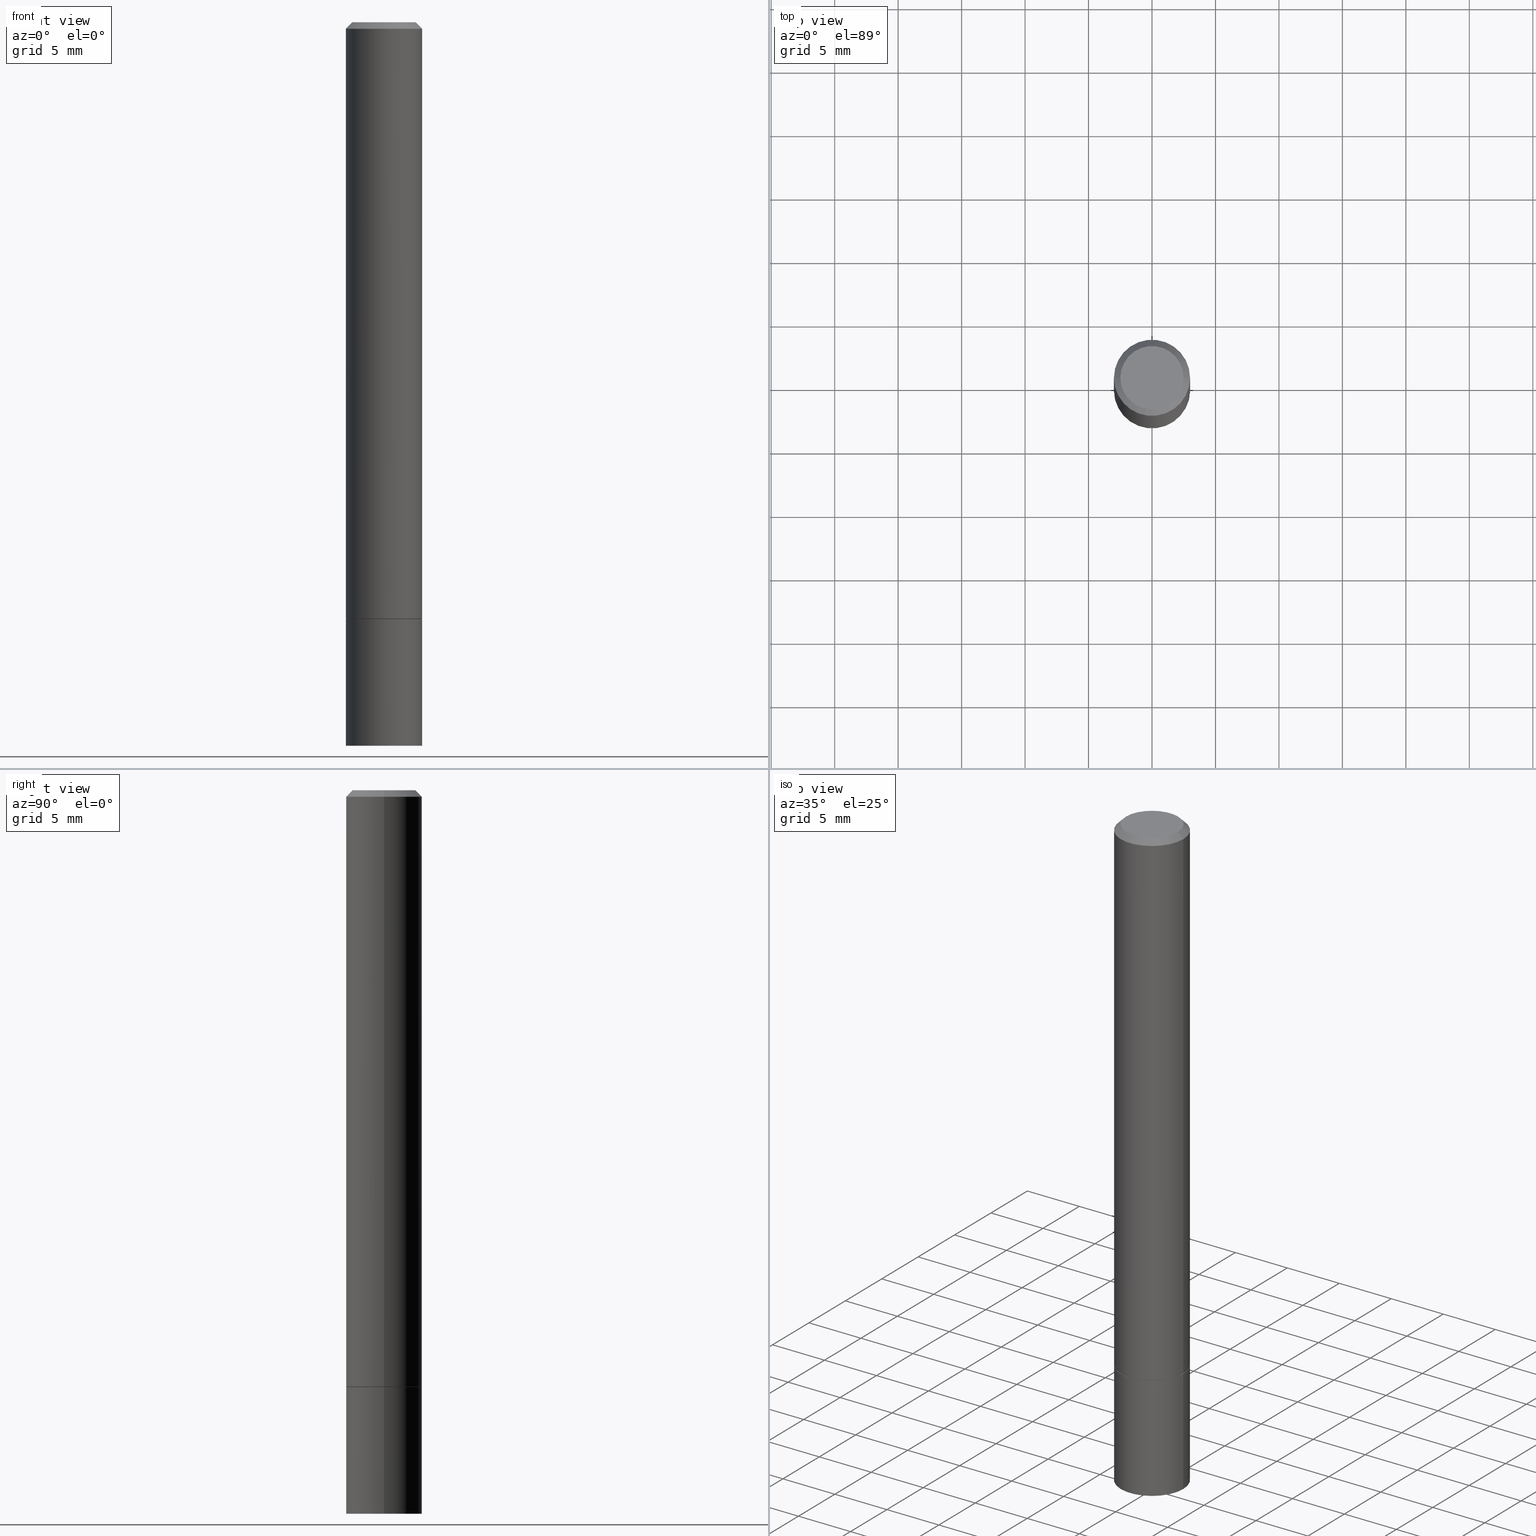
[diagram: canonical four-view strip — front | top / right | iso, engineering-drawing reading convention]
A machine part, canonical four-view strip (front | top / right | iso — engineering-drawing reading convention). The complete STEP part file that produces these views, byte-faithful:
ISO-10303-21;
HEADER;
FILE_DESCRIPTION (( 'STEP AP203' ),
    '1' );
FILE_NAME ('49834.STEP',
    '2024-02-29T01:39:34',
    ( '' ),
    ( '' ),
    'SwSTEP 2.0',
    'SolidWorks 2023',
    '' );
FILE_SCHEMA (( 'CONFIG_CONTROL_DESIGN' ));
ENDSEC;

DATA;
#1 = DIRECTION ( 'NONE',  ( 1.000000000000000000, -6.982962677686265922E-15, 4.876176775795935793E-29 ) ) ;
#2 = EDGE_CURVE ( 'NONE', #321, #264, #237, .T. ) ;
#3 = PERSON_AND_ORGANIZATION ( #263, #84 ) ;
#4 = DIRECTION ( 'NONE',  ( -2.445468806185136597E-29, 3.491481338843145583E-15, 1.000000000000000000 ) ) ;
#5 = CIRCLE ( 'NONE', #232, 0.1180999999999999966 ) ;
#6 = CARTESIAN_POINT ( 'NONE',  ( 4.525095478964976833E-29, -6.460637069395356787E-15, -1.850400000000000045 ) ) ;
#7 = DATE_TIME_ROLE ( 'classification_date' ) ;
#8 = ORIENTED_EDGE ( 'NONE', *, *, #279, .T. ) ;
#9 = COORDINATED_UNIVERSAL_TIME_OFFSET ( 5, 0, .BEHIND. ) ;
#10 = VERTEX_POINT ( 'NONE', #235 ) ;
#11 = ORIENTED_EDGE ( 'NONE', *, *, #177, .F. ) ;
#12 = EDGE_CURVE ( 'NONE', #10, #201, #103, .T. ) ;
#13 = EDGE_LOOP ( 'NONE', ( #292, #111, #295, #88 ) ) ;
#14 = EDGE_LOOP ( 'NONE', ( #87, #315, #65, #58 ) ) ;
#15 = AXIS2_PLACEMENT_3D ( 'NONE', #79, #285, #52 ) ;
#16 = DIRECTION ( 'NONE',  ( -2.445468806185136597E-29, 3.491481338843145583E-15, 1.000000000000000000 ) ) ;
#17 = CARTESIAN_POINT ( 'NONE',  ( -0.1180999999999999966, -6.308784200013950972E-15, -2.244099999999999984 ) ) ;
#18 = DESIGN_CONTEXT ( 'detailed design', #38, 'design' ) ;
#19 = CARTESIAN_POINT ( 'NONE',  ( 4.525095478964976833E-29, -6.460637069395356787E-15, -1.850400000000000045 ) ) ;
#20 = DIRECTION ( 'NONE',  ( -1.000000000000000000, 6.982962677686265922E-15, -4.876176775795935793E-29 ) ) ;
#21 = DIRECTION ( 'NONE',  ( -0.7071067811865467956, 2.468850131082249172E-15, -0.7071067811865482389 ) ) ;
#22 = AXIS2_PLACEMENT_3D ( 'NONE', #130, #72, #20 ) ;
#23 = CC_DESIGN_APPROVAL ( #152, ( #74 ) ) ;
#24 = DIRECTION ( 'NONE',  ( -2.445468806185136597E-29, 3.491481338843145583E-15, 1.000000000000000000 ) ) ;
#25 = PERSON_AND_ORGANIZATION ( #263, #84 ) ;
#26 = CC_DESIGN_PERSON_AND_ORGANIZATION_ASSIGNMENT ( #51, #273, ( #159 ) ) ;
#27 = CC_DESIGN_DATE_AND_TIME_ASSIGNMENT ( #246, #359, ( #159 ) ) ;
#28 = DIRECTION ( 'NONE',  ( -2.445468806185136597E-29, 3.491481338843145583E-15, 1.000000000000000000 ) ) ;
#29 = APPROVAL_ROLE ( '' ) ;
#30 = PERSON_AND_ORGANIZATION ( #263, #84 ) ;
#31 = FACE_OUTER_BOUND ( 'NONE', #348, .T. ) ;
#32 = ORIENTED_EDGE ( 'NONE', *, *, #12, .F. ) ;
#33 = EDGE_CURVE ( 'NONE', #201, #64, #302, .T. ) ;
#34 = ORIENTED_EDGE ( 'NONE', *, *, #156, .F. ) ;
#35 = ORIENTED_EDGE ( 'NONE', *, *, #339, .T. ) ;
#36 = CONICAL_SURFACE ( 'NONE', #175, 0.1170999999999999958, 0.7853981633974141952 ) ;
#37 = DIRECTION ( 'NONE',  ( -2.445468806185136597E-29, 3.491481338843145583E-15, 1.000000000000000000 ) ) ;
#38 = APPLICATION_CONTEXT ( 'configuration controlled 3d designs of mechanical parts and assemblies' ) ;
#39 = ORIENTED_EDGE ( 'NONE', *, *, #296, .T. ) ;
#40 = CARTESIAN_POINT ( 'NONE',  ( 0.000000000000000000, 0.000000000000000000, 0.000000000000000000 ) ) ;
#41 = DIRECTION ( 'NONE',  ( -2.445468806185136877E-29, 3.491481338843145188E-15, 1.000000000000000000 ) ) ;
#42 = VECTOR ( 'NONE', #94, 39.37007874015748143 ) ;
#43 = CIRCLE ( 'NONE', #293, 0.09809999999999979847 ) ;
#44 = CARTESIAN_POINT ( 'NONE',  ( 0.1180999999999998856, -8.246878922347472765E-16, 5.758764772214994135E-30 ) ) ;
#45 = LINE ( 'NONE', #147, #157 ) ;
#46 = LINE ( 'NONE', #67, #358 ) ;
#47 = DIRECTION ( 'NONE',  ( 0.7071067811865467956, -7.319954787623254468E-15, -0.7071067811865482389 ) ) ;
#48 = CARTESIAN_POINT ( 'NONE',  ( 0.1180999999999999966, -8.659921164732650602E-15, -2.244099999999999984 ) ) ;
#49 = CC_DESIGN_PERSON_AND_ORGANIZATION_ASSIGNMENT ( #3, #55, ( #74 ) ) ;
#50 = DIRECTION ( 'NONE',  ( -2.445468806185136597E-29, 3.491481338843145583E-15, 1.000000000000000000 ) ) ;
#51 = PERSON_AND_ORGANIZATION ( #263, #84 ) ;
#52 = DIRECTION ( 'NONE',  ( 1.000000000000000000, -6.982962677686266711E-15, 4.876176775795935232E-29 ) ) ;
#53 = APPROVAL ( #334, 'UNSPECIFIED' ) ;
#54 = DIRECTION ( 'NONE',  ( -2.445468806185136597E-29, 3.491481338843145583E-15, 1.000000000000000000 ) ) ;
#55 = PERSON_AND_ORGANIZATION_ROLE ( 'classification_officer' ) ;
#56 = DIRECTION ( 'NONE',  ( -2.445468806185136597E-29, 3.491481338843145583E-15, 1.000000000000000000 ) ) ;
#57 = CONICAL_SURFACE ( 'NONE', #109, 0.1170999999999999958, 0.7853981633974141952 ) ;
#58 = ORIENTED_EDGE ( 'NONE', *, *, #97, .F. ) ;
#59 = ORIENTED_EDGE ( 'NONE', *, *, #12, .T. ) ;
#60 = DIRECTION ( 'NONE',  ( -2.445468806185136597E-29, 3.491481338843145583E-15, 1.000000000000000000 ) ) ;
#61 = CC_DESIGN_DATE_AND_TIME_ASSIGNMENT ( #288, #7, ( #74 ) ) ;
#62 = VERTEX_POINT ( 'NONE', #68 ) ;
#63 = VECTOR ( 'NONE', #277, 39.37007874015748854 ) ;
#64 = VERTEX_POINT ( 'NONE', #216 ) ;
#65 = ORIENTED_EDGE ( 'NONE', *, *, #2, .T. ) ;
#66 = MANIFOLD_SOLID_BREP ( 'Body-Move/Copy2[1]', #305 ) ;
#67 = CARTESIAN_POINT ( 'NONE',  ( -0.1180999999999997607, 7.548582654578835839E-16, -0.01999999999999999695 ) ) ;
#68 = CARTESIAN_POINT ( 'NONE',  ( 0.1180999999999999966, -7.281833480291261254E-15, -1.849399999999999933 ) ) ;
#69 = CARTESIAN_POINT ( 'NONE',  ( -0.1180999999999998856, 8.391509709326775068E-16, -5.809262341591038179E-30 ) ) ;
#70 = DIRECTION ( 'NONE',  ( -1.000000000000000000, 6.982962677686265922E-15, -4.876176775795935793E-29 ) ) ;
#71 = COORDINATED_UNIVERSAL_TIME_OFFSET ( 5, 0, .BEHIND. ) ;
#72 = DIRECTION ( 'NONE',  ( 2.438088387897960049E-29, -3.491481338843145188E-15, -1.000000000000000000 ) ) ;
#73 = DATE_AND_TIME ( #187, #176 ) ;
#74 = SECURITY_CLASSIFICATION ( '', '', #223 ) ;
#75 = CARTESIAN_POINT ( 'NONE',  ( 0.000000000000000000, 0.000000000000000000, 0.000000000000000000 ) ) ;
#76 = EDGE_CURVE ( 'NONE', #85, #202, #312, .T. ) ;
#77 = FACE_OUTER_BOUND ( 'NONE', #257, .T. ) ;
#78 = PRODUCT_DEFINITION_SHAPE ( 'NONE', 'NONE',  #159 ) ;
#79 = CARTESIAN_POINT ( 'NONE',  ( 0.000000000000000000, 0.000000000000000000, 0.000000000000000000 ) ) ;
#80 = AXIS2_PLACEMENT_3D ( 'NONE', #337, #28, #168 ) ;
#81 = CARTESIAN_POINT ( 'NONE',  ( -0.1180999999999997607, 7.548582654578835839E-16, -0.01999999999999999695 ) ) ;
#82 = EDGE_CURVE ( 'NONE', #64, #264, #247, .T. ) ;
#83 = EDGE_LOOP ( 'NONE', ( #145, #350 ) ) ;
#84 = ORGANIZATION ( 'UNSPECIFIED', 'UNSPECIFIED', '' ) ;
#85 = VERTEX_POINT ( 'NONE', #215 ) ;
#86 = APPROVAL ( #214, 'UNSPECIFIED' ) ;
#87 = ORIENTED_EDGE ( 'NONE', *, *, #328, .F. ) ;
#88 = ORIENTED_EDGE ( 'NONE', *, *, #339, .F. ) ;
#89 =( CONVERSION_BASED_UNIT ( 'INCH', #150 ) LENGTH_UNIT ( ) NAMED_UNIT ( #267 ) );
#90 = AXIS2_PLACEMENT_3D ( 'NONE', #186, #16, #98 ) ;
#91 = ADVANCED_FACE ( 'NONE', ( #363 ), #346, .T. ) ;
#92 = AXIS2_PLACEMENT_3D ( 'NONE', #284, #4, #196 ) ;
#93 = ORIENTED_EDGE ( 'NONE', *, *, #2, .F. ) ;
#94 = DIRECTION ( 'NONE',  ( -2.445468806185136877E-29, 3.491481338843145188E-15, 1.000000000000000000 ) ) ;
#95 = UNCERTAINTY_MEASURE_WITH_UNIT (LENGTH_MEASURE( 1.000000000000000082E-05 ), #89, 'distance_accuracy_value', 'NONE');
#96 = CARTESIAN_POINT ( 'NONE',  ( 0.1180999999999997607, -8.800544403136790625E-16, -0.01999999999999999695 ) ) ;
#97 = EDGE_CURVE ( 'NONE', #115, #264, #46, .T. ) ;
#98 = DIRECTION ( 'NONE',  ( 1.000000000000000000, -6.982962677686267499E-15, 4.876195163481342132E-29 ) ) ;
#99 = APPROVAL_ROLE ( '' ) ;
#100 = DIRECTION ( 'NONE',  ( 1.000000000000000000, -6.982962677686265133E-15, 0.000000000000000000 ) ) ;
#101 = APPROVAL_ROLE ( '' ) ;
#102 = DIRECTION ( 'NONE',  ( -2.445468806185136597E-29, 3.491481338843145583E-15, 1.000000000000000000 ) ) ;
#103 = CIRCLE ( 'NONE', #162, 0.1170999999999999958 ) ;
#104 = DIRECTION ( 'NONE',  ( 2.445468806185136597E-29, -3.491481338843145583E-15, -1.000000000000000000 ) ) ;
#105 = AXIS2_PLACEMENT_3D ( 'NONE', #208, #234, #153 ) ;
#106 = PERSON_AND_ORGANIZATION_ROLE ( 'design_supplier' ) ;
#107 = DIRECTION ( 'NONE',  ( -1.000000000000000000, 6.982962677686266711E-15, 0.000000000000000000 ) ) ;
#108 = AXIS2_PLACEMENT_3D ( 'NONE', #40, #184, #245 ) ;
#109 = AXIS2_PLACEMENT_3D ( 'NONE', #307, #310, #228 ) ;
#110 = CYLINDRICAL_SURFACE ( 'NONE', #276, 0.1180999999999999966 ) ;
#111 = ORIENTED_EDGE ( 'NONE', *, *, #332, .T. ) ;
#112 = DATE_AND_TIME ( #342, #135 ) ;
#113 = ORIENTED_EDGE ( 'NONE', *, *, #182, .F. ) ;
#114 = ADVANCED_FACE ( 'NONE', ( #324 ), #36, .T. ) ;
#115 = VERTEX_POINT ( 'NONE', #329 ) ;
#116 = ADVANCED_BREP_SHAPE_REPRESENTATION ( '49834', ( #66, #200, #105 ), #340 ) ;
#117 = CIRCLE ( 'NONE', #255, 0.1180999999999999966 ) ;
#118 = ORIENTED_EDGE ( 'NONE', *, *, #332, .F. ) ;
#119 = DIRECTION ( 'NONE',  ( 1.000000000000000000, -6.982962677686266711E-15, 0.000000000000000000 ) ) ;
#120 = ADVANCED_FACE ( 'NONE', ( #304 ), #185, .F. ) ;
#121 = ORIENTED_EDGE ( 'NONE', *, *, #97, .T. ) ;
#122 = AXIS2_PLACEMENT_3D ( 'NONE', #280, #104, #107 ) ;
#123 = CC_DESIGN_APPROVAL ( #86, ( #159 ) ) ;
#124 = DIRECTION ( 'NONE',  ( 2.438088387897960049E-29, -3.491481338843145188E-15, -1.000000000000000000 ) ) ;
#125 = FACE_OUTER_BOUND ( 'NONE', #297, .T. ) ;
#126 = DIRECTION ( 'NONE',  ( -2.445468806185136597E-29, 3.491481338843145583E-15, 1.000000000000000000 ) ) ;
#127 = FACE_OUTER_BOUND ( 'NONE', #229, .T. ) ;
#128 = ADVANCED_FACE ( 'NONE', ( #161 ), #272, .F. ) ;
#129 = COORDINATED_UNIVERSAL_TIME_OFFSET ( 5, 0, .BEHIND. ) ;
#130 = CARTESIAN_POINT ( 'NONE',  ( 8.246878922347932277E-16, 0.1180999999999935435, -1.850400000000000489 ) ) ;
#131 = COORDINATED_UNIVERSAL_TIME_OFFSET ( 5, 0, .BEHIND. ) ;
#132 = LINE ( 'NONE', #96, #351 ) ;
#133 = PERSON_AND_ORGANIZATION ( #263, #84 ) ;
#134 = CARTESIAN_POINT ( 'NONE',  ( 4.522650010158791791E-29, -6.457145588056512991E-15, -1.849399999999999933 ) ) ;
#135 = LOCAL_TIME ( 20, 39, 34.00000000000000000, #143 ) ;
#136 = CARTESIAN_POINT ( 'NONE',  ( 0.1180999999999997607, -8.800544403136790625E-16, -0.01999999999999999695 ) ) ;
#137 = PRODUCT ( '49834', '49834', '', ( #322 ) ) ;
#138 = ADVANCED_FACE ( 'NONE', ( #323 ), #190, .T. ) ;
#139 = CARTESIAN_POINT ( 'NONE',  ( -0.1170999999999999958, -5.623293071472057196E-15, -1.850400000000000045 ) ) ;
#140 = AXIS2_PLACEMENT_3D ( 'NONE', #239, #24, #303 ) ;
#141 = CC_DESIGN_APPROVAL ( #53, ( #227 ) ) ;
#142 = VERTEX_POINT ( 'NONE', #48 ) ;
#143 = COORDINATED_UNIVERSAL_TIME_OFFSET ( 5, 0, .BEHIND. ) ;
#144 = EDGE_CURVE ( 'NONE', #10, #62, #360, .T. ) ;
#145 = ORIENTED_EDGE ( 'NONE', *, *, #156, .T. ) ;
#146 = ORIENTED_EDGE ( 'NONE', *, *, #217, .F. ) ;
#147 = CARTESIAN_POINT ( 'NONE',  ( -0.1180999999999999966, 8.391509709326782957E-16, -5.809262341591043784E-30 ) ) ;
#148 = AXIS2_PLACEMENT_3D ( 'NONE', #330, #274, #333 ) ;
#149 = ORIENTED_EDGE ( 'NONE', *, *, #164, .T. ) ;
#150 = LENGTH_MEASURE_WITH_UNIT ( LENGTH_MEASURE( 0.02539999999999999897 ), #179 );
#151 = EDGE_LOOP ( 'NONE', ( #203, #174 ) ) ;
#152 = APPROVAL ( #281, 'UNSPECIFIED' ) ;
#153 = DIRECTION ( 'NONE',  ( 1.000000000000000000, 0.000000000000000000, 0.000000000000000000 ) ) ;
#154 = DIRECTION ( 'NONE',  ( 1.000000000000000000, -6.982962677686264344E-15, 0.000000000000000000 ) ) ;
#155 = DIRECTION ( 'NONE',  ( -1.000000000000000000, 6.982962677686265922E-15, -4.876176775795935793E-29 ) ) ;
#156 = EDGE_CURVE ( 'NONE', #115, #233, #318, .T. ) ;
#157 = VECTOR ( 'NONE', #41, 39.37007874015748143 ) ;
#158 = DIRECTION ( 'NONE',  ( -2.445468806185136877E-29, 3.491481338843145188E-15, 1.000000000000000000 ) ) ;
#159 = PRODUCT_DEFINITION ( 'UNKNOWN', '', #227, #18 ) ;
#160 = CARTESIAN_POINT ( 'NONE',  ( -0.1170999999999999958, -5.628591525820279598E-15, -1.850400000000000045 ) ) ;
#161 = FACE_OUTER_BOUND ( 'NONE', #151, .T. ) ;
#162 = AXIS2_PLACEMENT_3D ( 'NONE', #209, #212, #355 ) ;
#163 = CARTESIAN_POINT ( 'NONE',  ( 6.850286386810212718E-16, 0.09809999999999979847, -3.403800630954616551E-16 ) ) ;
#164 = EDGE_CURVE ( 'NONE', #201, #10, #205, .T. ) ;
#165 = DIRECTION ( 'NONE',  ( 1.000000000000000000, -6.982962677686265133E-15, 0.000000000000000000 ) ) ;
#166 = FACE_OUTER_BOUND ( 'NONE', #231, .T. ) ;
#167 = EDGE_CURVE ( 'NONE', #233, #321, #132, .T. ) ;
#168 = DIRECTION ( 'NONE',  ( 1.000000000000000000, -6.982962677686265133E-15, 0.000000000000000000 ) ) ;
#169 = CARTESIAN_POINT ( 'NONE',  ( -0.1180999999999999966, -6.308784200013950972E-15, -1.850400000000000045 ) ) ;
#170 = LINE ( 'NONE', #336, #189 ) ;
#171 = APPROVAL_PERSON_ORGANIZATION ( #133, #86, #99 ) ;
#172 = ORIENTED_EDGE ( 'NONE', *, *, #279, .F. ) ;
#173 = ORIENTED_EDGE ( 'NONE', *, *, #164, .F. ) ;
#174 = ORIENTED_EDGE ( 'NONE', *, *, #217, .T. ) ;
#175 = AXIS2_PLACEMENT_3D ( 'NONE', #271, #126, #154 ) ;
#176 = LOCAL_TIME ( 20, 39, 34.00000000000000000, #71 ) ;
#177 = EDGE_CURVE ( 'NONE', #142, #345, #327, .T. ) ;
#178 = ORIENTED_EDGE ( 'NONE', *, *, #33, .F. ) ;
#179 =( LENGTH_UNIT ( ) NAMED_UNIT ( * ) SI_UNIT ( $, .METRE. ) );
#180 = ORIENTED_EDGE ( 'NONE', *, *, #76, .F. ) ;
#181 = DIRECTION ( 'NONE',  ( -2.445468806185136597E-29, 3.491481338843145583E-15, 1.000000000000000000 ) ) ;
#182 = EDGE_CURVE ( 'NONE', #62, #321, #299, .T. ) ;
#183 = CONICAL_SURFACE ( 'NONE', #122, 0.1180999999999997607, 0.7853981633974472798 ) ;
#184 = DIRECTION ( 'NONE',  ( -2.445468806185136597E-29, 3.491481338843145583E-15, 1.000000000000000000 ) ) ;
#185 = PLANE ( 'NONE',  #195 ) ;
#186 = CARTESIAN_POINT ( 'NONE',  ( -1.043851414335219820E-46, 1.490343170380447200E-32, 4.268512490100411279E-18 ) ) ;
#187 = CALENDAR_DATE ( 2024, 28, 2 ) ;
#188 = VECTOR ( 'NONE', #218, 39.37007874015748854 ) ;
#189 = VECTOR ( 'NONE', #252, 39.37007874015748143 ) ;
#190 = CYLINDRICAL_SURFACE ( 'NONE', #108, 0.1180999999999998856 ) ;
#191 = PERSON_AND_ORGANIZATION_ROLE ( 'creator' ) ;
#192 = APPLICATION_PROTOCOL_DEFINITION ( 'international standard', 'config_control_design', 1994, #38 ) ;
#193 = CARTESIAN_POINT ( 'NONE',  ( -1.043851414335219820E-46, 1.490343170380447200E-32, 4.268512490100411279E-18 ) ) ;
#194 = ADVANCED_FACE ( 'NONE', ( #127 ), #242, .F. ) ;
#195 = AXIS2_PLACEMENT_3D ( 'NONE', #163, #124, #70 ) ;
#196 = DIRECTION ( 'NONE',  ( 1.000000000000000000, -6.982962677686266711E-15, 0.000000000000000000 ) ) ;
#197 = CALENDAR_DATE ( 2024, 28, 2 ) ;
#198 = EDGE_LOOP ( 'NONE', ( #11, #316 ) ) ;
#199 = APPROVAL_PERSON_ORGANIZATION ( #30, #152, #29 ) ;
#200 = MANIFOLD_SOLID_BREP ( 'Body-Move/Copy2[2]', #269 ) ;
#201 = VERTEX_POINT ( 'NONE', #139 ) ;
#202 = VERTEX_POINT ( 'NONE', #169 ) ;
#203 = ORIENTED_EDGE ( 'NONE', *, *, #76, .T. ) ;
#204 =( NAMED_UNIT ( * ) PLANE_ANGLE_UNIT ( ) SI_UNIT ( $, .RADIAN. ) );
#205 = CIRCLE ( 'NONE', #140, 0.1170999999999999958 ) ;
#206 = AXIS2_PLACEMENT_3D ( 'NONE', #354, #181, #241 ) ;
#207 = ORIENTED_EDGE ( 'NONE', *, *, #144, .T. ) ;
#208 = CARTESIAN_POINT ( 'NONE',  ( 0.000000000000000000, 0.000000000000000000, 0.000000000000000000 ) ) ;
#209 = CARTESIAN_POINT ( 'NONE',  ( 4.525095478964976833E-29, -6.460637069395356787E-15, -1.850400000000000045 ) ) ;
#210 = ADVANCED_FACE ( 'NONE', ( #31 ), #183, .T. ) ;
#211 = CARTESIAN_POINT ( 'NONE',  ( 0.000000000000000000, 0.000000000000000000, 0.000000000000000000 ) ) ;
#212 = DIRECTION ( 'NONE',  ( -2.445468806185136597E-29, 3.491481338843145583E-15, 1.000000000000000000 ) ) ;
#213 = APPLICATION_CONTEXT ( 'configuration controlled 3d designs of mechanical parts and assemblies' ) ;
#214 = APPROVAL_STATUS ( 'not_yet_approved' ) ;
#215 = CARTESIAN_POINT ( 'NONE',  ( 0.1180999999999999966, -7.285324961630104261E-15, -1.850400000000000045 ) ) ;
#216 = CARTESIAN_POINT ( 'NONE',  ( -0.1181000000000000105, -2.424336636484006398E-15, -1.849399999999999933 ) ) ;
#217 = EDGE_CURVE ( 'NONE', #202, #85, #5, .T. ) ;
#218 = DIRECTION ( 'NONE',  ( -0.7071067811865232589, 7.493145998870265808E-15, 0.7071067811865715536 ) ) ;
#219 = DATE_AND_TIME ( #326, #313 ) ;
#220 = PLANE ( 'NONE',  #261 ) ;
#221 = VECTOR ( 'NONE', #158, 39.37007874015748143 ) ;
#222 = CARTESIAN_POINT ( 'NONE',  ( 0.09809999999999979847, -7.765346469475323778E-16, 4.268512490105521927E-18 ) ) ;
#223 = SECURITY_CLASSIFICATION_LEVEL ( 'unclassified' ) ;
#224 = DIRECTION ( 'NONE',  ( 1.000000000000000000, -6.982962677686266711E-15, 4.876176775795936353E-29 ) ) ;
#225 = CC_DESIGN_PERSON_AND_ORGANIZATION_ASSIGNMENT ( #365, #106, ( #227 ) ) ;
#226 = DIRECTION ( 'NONE',  ( 1.000000000000000000, -6.982962677686265133E-15, 0.000000000000000000 ) ) ;
#227 = PRODUCT_DEFINITION_FORMATION_WITH_SPECIFIED_SOURCE ( 'ANY', '', #137, .NOT_KNOWN. ) ;
#228 = DIRECTION ( 'NONE',  ( 1.000000000000000000, -6.982962677686264344E-15, 0.000000000000000000 ) ) ;
#229 = EDGE_LOOP ( 'NONE', ( #32, #173 ) ) ;
#230 = EDGE_LOOP ( 'NONE', ( #8, #352, #93, #113 ) ) ;
#231 = EDGE_LOOP ( 'NONE', ( #59, #349, #172, #258 ) ) ;
#232 = AXIS2_PLACEMENT_3D ( 'NONE', #6, #56, #341 ) ;
#233 = VERTEX_POINT ( 'NONE', #222 ) ;
#234 = DIRECTION ( 'NONE',  ( 0.000000000000000000, 0.000000000000000000, 1.000000000000000000 ) ) ;
#235 = CARTESIAN_POINT ( 'NONE',  ( 0.1170999999999999958, -7.278341998952418247E-15, -1.850400000000000045 ) ) ;
#236 = ORIENTED_EDGE ( 'NONE', *, *, #266, .T. ) ;
#237 = CIRCLE ( 'NONE', #325, 0.1180999999999997607 ) ;
#238 = CIRCLE ( 'NONE', #80, 0.1180999999999999966 ) ;
#239 = CARTESIAN_POINT ( 'NONE',  ( 4.525095478964976833E-29, -6.460637069395356787E-15, -1.850400000000000045 ) ) ;
#240 = DIRECTION ( 'NONE',  ( 1.000000000000000000, -6.982962677686266711E-15, 4.876176775795936353E-29 ) ) ;
#241 = DIRECTION ( 'NONE',  ( 1.000000000000000000, -6.982962677686265133E-15, 0.000000000000000000 ) ) ;
#242 = PLANE ( 'NONE',  #287 ) ;
#243 = CALENDAR_DATE ( 2024, 28, 2 ) ;
#244 = AXIS2_PLACEMENT_3D ( 'NONE', #134, #254, #226 ) ;
#245 = DIRECTION ( 'NONE',  ( 1.000000000000000000, -6.982962677686266711E-15, 4.876176775795935232E-29 ) ) ;
#246 = DATE_AND_TIME ( #243, #306 ) ;
#247 = LINE ( 'NONE', #69, #42 ) ;
#248 = APPROVAL_DATE_TIME ( #73, #53 ) ;
#249 = CIRCLE ( 'NONE', #92, 0.1180999999999997607 ) ;
#250 = DIRECTION ( 'NONE',  ( -2.438088387897960049E-29, 3.491481338843145188E-15, 1.000000000000000000 ) ) ;
#251 = DIRECTION ( 'NONE',  ( -2.445468806185136597E-29, 3.491481338843145583E-15, 1.000000000000000000 ) ) ;
#252 = DIRECTION ( 'NONE',  ( -2.445468806185136877E-29, 3.491481338843145188E-15, 1.000000000000000000 ) ) ;
#253 = APPROVAL_DATE_TIME ( #112, #152 ) ;
#254 = DIRECTION ( 'NONE',  ( -2.445468806185136597E-29, 3.491481338843145583E-15, 1.000000000000000000 ) ) ;
#255 = AXIS2_PLACEMENT_3D ( 'NONE', #309, #54, #165 ) ;
#256 = CC_DESIGN_PERSON_AND_ORGANIZATION_ASSIGNMENT ( #25, #278, ( #137 ) ) ;
#257 = EDGE_LOOP ( 'NONE', ( #289, #343, #180, #262 ) ) ;
#258 = ORIENTED_EDGE ( 'NONE', *, *, #144, .F. ) ;
#259 = PRODUCT_RELATED_PRODUCT_CATEGORY ( 'detail', '', ( #137 ) ) ;
#260 = CARTESIAN_POINT ( 'NONE',  ( 4.890937612370271407E-31, -6.982962677686290376E-17, -0.01999999999999999695 ) ) ;
#261 = AXIS2_PLACEMENT_3D ( 'NONE', #317, #298, #155 ) ;
#262 = ORIENTED_EDGE ( 'NONE', *, *, #266, .F. ) ;
#263 = PERSON ( 'UNSPECIFIED', 'UNSPECIFIED', 'UNSPECIFIED', ('UNSPECIFIED'), ('UNSPECIFIED'), ('UNSPECIFIED') ) ;
#264 = VERTEX_POINT ( 'NONE', #81 ) ;
#265 = APPLICATION_PROTOCOL_DEFINITION ( 'international standard', 'config_control_design', 1994, #213 ) ;
#266 = EDGE_CURVE ( 'NONE', #142, #85, #170, .T. ) ;
#267 = DIMENSIONAL_EXPONENTS ( 1.000000000000000000, 0.000000000000000000, 0.000000000000000000, 0.000000000000000000, 0.000000000000000000, 0.000000000000000000, 0.000000000000000000 ) ;
#268 = CARTESIAN_POINT ( 'NONE',  ( 0.1170999999999999958, -7.278341998952418247E-15, -1.850400000000000045 ) ) ;
#269 = CLOSED_SHELL ( 'NONE', ( #301, #138, #91, #210, #290, #114, #194, #120 ) ) ;
#270 = LOCAL_TIME ( 20, 39, 34.00000000000000000, #9 ) ;
#271 = CARTESIAN_POINT ( 'NONE',  ( 4.525095478964976833E-29, -6.460637069395356787E-15, -1.850400000000000045 ) ) ;
#272 = PLANE ( 'NONE',  #22 ) ;
#273 = PERSON_AND_ORGANIZATION_ROLE ( 'creator' ) ;
#274 = DIRECTION ( 'NONE',  ( 2.445468806185136597E-29, -3.491481338843145583E-15, -1.000000000000000000 ) ) ;
#275 = AXIS2_PLACEMENT_3D ( 'NONE', #19, #102, #100 ) ;
#276 = AXIS2_PLACEMENT_3D ( 'NONE', #75, #50, #224 ) ;
#277 = DIRECTION ( 'NONE',  ( 0.7071067811865232589, -2.468850131082003836E-15, 0.7071067811865715536 ) ) ;
#278 = PERSON_AND_ORGANIZATION_ROLE ( 'design_owner' ) ;
#279 = EDGE_CURVE ( 'NONE', #62, #64, #335, .T. ) ;
#280 = CARTESIAN_POINT ( 'NONE',  ( 4.890937612370271407E-31, -6.982962677686290376E-17, -0.01999999999999999695 ) ) ;
#281 = APPROVAL_STATUS ( 'not_yet_approved' ) ;
#282 = APPROVAL_PERSON_ORGANIZATION ( #361, #53, #101 ) ;
#283 = CYLINDRICAL_SURFACE ( 'NONE', #15, 0.1180999999999998856 ) ;
#284 = CARTESIAN_POINT ( 'NONE',  ( 4.890937612370271407E-31, -6.982962677686290376E-17, -0.01999999999999999695 ) ) ;
#285 = DIRECTION ( 'NONE',  ( -2.445468806185136597E-29, 3.491481338843145583E-15, 1.000000000000000000 ) ) ;
#286 = ADVANCED_FACE ( 'NONE', ( #77 ), #110, .T. ) ;
#287 = AXIS2_PLACEMENT_3D ( 'NONE', #357, #250, #1 ) ;
#288 = DATE_AND_TIME ( #197, #270 ) ;
#289 = ORIENTED_EDGE ( 'NONE', *, *, #177, .T. ) ;
#290 = ADVANCED_FACE ( 'NONE', ( #308 ), #283, .T. ) ;
#291 = ORIENTED_EDGE ( 'NONE', *, *, #167, .F. ) ;
#292 = ORIENTED_EDGE ( 'NONE', *, *, #82, .F. ) ;
#293 = AXIS2_PLACEMENT_3D ( 'NONE', #193, #251, #338 ) ;
#294 = CYLINDRICAL_SURFACE ( 'NONE', #320, 0.1180999999999999966 ) ;
#295 = ORIENTED_EDGE ( 'NONE', *, *, #182, .T. ) ;
#296 = EDGE_CURVE ( 'NONE', #345, #142, #238, .T. ) ;
#297 = EDGE_LOOP ( 'NONE', ( #319, #39, #236, #146 ) ) ;
#298 = DIRECTION ( 'NONE',  ( 2.438088387897960049E-29, -3.491481338843145188E-15, -1.000000000000000000 ) ) ;
#299 = LINE ( 'NONE', #44, #221 ) ;
#300 =( NAMED_UNIT ( * ) SI_UNIT ( $, .STERADIAN. ) SOLID_ANGLE_UNIT ( ) );
#301 = ADVANCED_FACE ( 'NONE', ( #166 ), #57, .T. ) ;
#302 = LINE ( 'NONE', #160, #188 ) ;
#303 = DIRECTION ( 'NONE',  ( 1.000000000000000000, -6.982962677686264344E-15, 0.000000000000000000 ) ) ;
#304 = FACE_OUTER_BOUND ( 'NONE', #83, .T. ) ;
#305 = CLOSED_SHELL ( 'NONE', ( #286, #344, #128, #366 ) ) ;
#306 = LOCAL_TIME ( 20, 39, 34.00000000000000000, #131 ) ;
#307 = CARTESIAN_POINT ( 'NONE',  ( 4.525095478964976833E-29, -6.460637069395356787E-15, -1.850400000000000045 ) ) ;
#308 = FACE_OUTER_BOUND ( 'NONE', #13, .T. ) ;
#309 = CARTESIAN_POINT ( 'NONE',  ( 4.522650010158791791E-29, -6.457145588056512991E-15, -1.849399999999999933 ) ) ;
#310 = DIRECTION ( 'NONE',  ( -2.445468806185136597E-29, 3.491481338843145583E-15, 1.000000000000000000 ) ) ;
#311 = SHAPE_DEFINITION_REPRESENTATION ( #78, #116 ) ;
#312 = CIRCLE ( 'NONE', #275, 0.1180999999999999966 ) ;
#313 = LOCAL_TIME ( 20, 39, 34.00000000000000000, #129 ) ;
#314 = EDGE_LOOP ( 'NONE', ( #178, #149, #207, #118 ) ) ;
#315 = ORIENTED_EDGE ( 'NONE', *, *, #167, .T. ) ;
#316 = ORIENTED_EDGE ( 'NONE', *, *, #296, .F. ) ;
#317 = CARTESIAN_POINT ( 'NONE',  ( 8.246878922348027926E-16, 0.1180999999999921557, -2.244100000000000428 ) ) ;
#318 = CIRCLE ( 'NONE', #90, 0.09809999999999979847 ) ;
#319 = ORIENTED_EDGE ( 'NONE', *, *, #362, .F. ) ;
#320 = AXIS2_PLACEMENT_3D ( 'NONE', #211, #60, #240 ) ;
#321 = VERTEX_POINT ( 'NONE', #136 ) ;
#322 = MECHANICAL_CONTEXT ( 'NONE', #213, 'mechanical' ) ;
#323 = FACE_OUTER_BOUND ( 'NONE', #230, .T. ) ;
#324 = FACE_OUTER_BOUND ( 'NONE', #314, .T. ) ;
#325 = AXIS2_PLACEMENT_3D ( 'NONE', #260, #37, #119 ) ;
#326 = CALENDAR_DATE ( 2024, 28, 2 ) ;
#327 = CIRCLE ( 'NONE', #206, 0.1180999999999999966 ) ;
#328 = EDGE_CURVE ( 'NONE', #233, #115, #43, .T. ) ;
#329 = CARTESIAN_POINT ( 'NONE',  ( -0.09809999999999979847, 7.199434520694525264E-16, 4.268512490095498617E-18 ) ) ;
#330 = CARTESIAN_POINT ( 'NONE',  ( 4.890937612370271407E-31, -6.982962677686290376E-17, -0.01999999999999999695 ) ) ;
#331 = APPROVAL_DATE_TIME ( #219, #86 ) ;
#332 = EDGE_CURVE ( 'NONE', #64, #62, #117, .T. ) ;
#333 = DIRECTION ( 'NONE',  ( -1.000000000000000000, 6.982962677686266711E-15, 0.000000000000000000 ) ) ;
#334 = APPROVAL_STATUS ( 'not_yet_approved' ) ;
#335 = CIRCLE ( 'NONE', #244, 0.1180999999999999966 ) ;
#336 = CARTESIAN_POINT ( 'NONE',  ( 0.1180999999999999966, -8.246878922347480654E-16, 5.758764772215000440E-30 ) ) ;
#337 = CARTESIAN_POINT ( 'NONE',  ( 5.487876547960064752E-29, -7.835233272497902340E-15, -2.244099999999999984 ) ) ;
#338 = DIRECTION ( 'NONE',  ( 1.000000000000000000, -6.982962677686267499E-15, 4.876195163481342132E-29 ) ) ;
#339 = EDGE_CURVE ( 'NONE', #264, #321, #249, .T. ) ;
#340 =( GEOMETRIC_REPRESENTATION_CONTEXT ( 3 ) GLOBAL_UNCERTAINTY_ASSIGNED_CONTEXT ( ( #95 ) ) GLOBAL_UNIT_ASSIGNED_CONTEXT ( ( #89, #204, #300 ) ) REPRESENTATION_CONTEXT ( 'NONE', 'WORKASPACE' ) );
#341 = DIRECTION ( 'NONE',  ( 1.000000000000000000, -6.982962677686265133E-15, 0.000000000000000000 ) ) ;
#342 = CALENDAR_DATE ( 2024, 28, 2 ) ;
#343 = ORIENTED_EDGE ( 'NONE', *, *, #362, .T. ) ;
#344 = ADVANCED_FACE ( 'NONE', ( #353 ), #220, .T. ) ;
#345 = VERTEX_POINT ( 'NONE', #17 ) ;
#346 = CONICAL_SURFACE ( 'NONE', #148, 0.1180999999999997607, 0.7853981633974472798 ) ;
#347 = CC_DESIGN_SECURITY_CLASSIFICATION ( #74, ( #227 ) ) ;
#348 = EDGE_LOOP ( 'NONE', ( #291, #34, #121, #35 ) ) ;
#349 = ORIENTED_EDGE ( 'NONE', *, *, #33, .T. ) ;
#350 = ORIENTED_EDGE ( 'NONE', *, *, #328, .T. ) ;
#351 = VECTOR ( 'NONE', #47, 39.37007874015748143 ) ;
#352 = ORIENTED_EDGE ( 'NONE', *, *, #82, .T. ) ;
#353 = FACE_OUTER_BOUND ( 'NONE', #198, .T. ) ;
#354 = CARTESIAN_POINT ( 'NONE',  ( 5.487876547960064752E-29, -7.835233272497902340E-15, -2.244099999999999984 ) ) ;
#355 = DIRECTION ( 'NONE',  ( 1.000000000000000000, -6.982962677686264344E-15, 0.000000000000000000 ) ) ;
#356 = CC_DESIGN_PERSON_AND_ORGANIZATION_ASSIGNMENT ( #364, #191, ( #227 ) ) ;
#357 = CARTESIAN_POINT ( 'NONE',  ( 4.525095478964976833E-29, -6.460637069395356787E-15, -1.850400000000000045 ) ) ;
#358 = VECTOR ( 'NONE', #21, 39.37007874015748143 ) ;
#359 = DATE_TIME_ROLE ( 'creation_date' ) ;
#360 = LINE ( 'NONE', #268, #63 ) ;
#361 = PERSON_AND_ORGANIZATION ( #263, #84 ) ;
#362 = EDGE_CURVE ( 'NONE', #345, #202, #45, .T. ) ;
#363 = FACE_OUTER_BOUND ( 'NONE', #14, .T. ) ;
#364 = PERSON_AND_ORGANIZATION ( #263, #84 ) ;
#365 = PERSON_AND_ORGANIZATION ( #263, #84 ) ;
#366 = ADVANCED_FACE ( 'NONE', ( #125 ), #294, .T. ) ;
ENDSEC;
END-ISO-10303-21;
